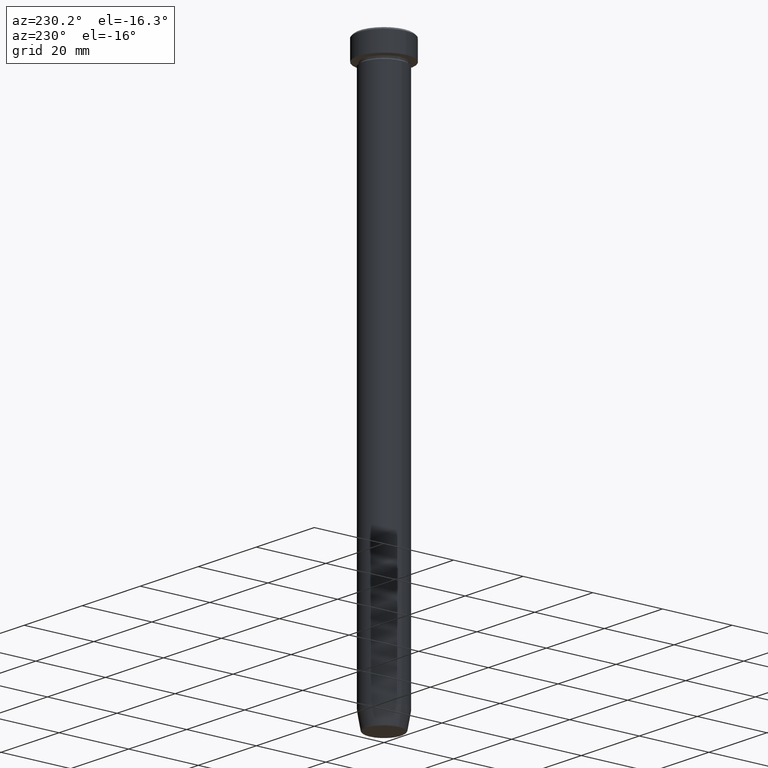
[diagram: clean part render]
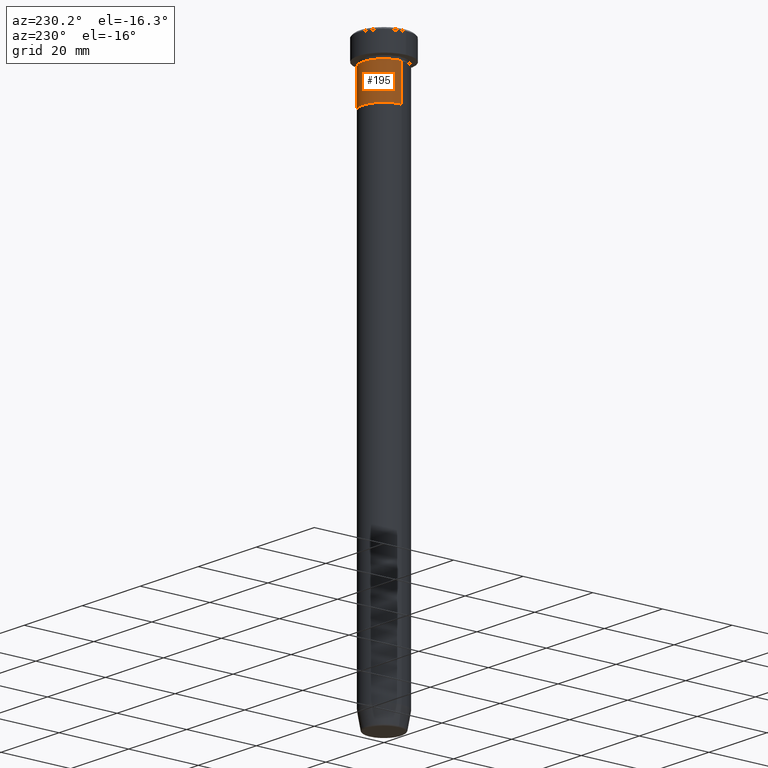
[diagram: same view with one face highlighted and labeled with its STEP entity id]
A machine part, auxiliary view. The second image highlights one B-rep face of the part: STEP entity #195.
In plain terms, the highlighted cylindrical surface (edge-blend (fillet) strip) has radius 6 mm, axis along (-0, -0, 1).
Its self-contained STEP definition (entity closure, byte-faithful):
#22 = VERTEX_POINT ( 'NONE', #446 ) ;
#32 = CARTESIAN_POINT ( 'NONE',  ( 0.000000000000000000, 0.000000000000000000, -17.00000000000000000 ) ) ;
#69 = ORIENTED_EDGE ( 'NONE', *, *, #89, .F. ) ;
#74 = EDGE_LOOP ( 'NONE', ( #443, #580, #251, #69 ) ) ;
#76 = CARTESIAN_POINT ( 'NONE',  ( 0.000000000000000000, 0.000000000000000000, -7.000000000000000000 ) ) ;
#89 = EDGE_CURVE ( 'NONE', #585, #565, #424, .T. ) ;
#127 = AXIS2_PLACEMENT_3D ( 'NONE', #32, #577, #201 ) ;
#132 = DIRECTION ( 'NONE',  ( -0.000000000000000000, -0.000000000000000000, 1.000000000000000000 ) ) ;
#134 = CIRCLE ( 'NONE', #127, 6.000000000000000000 ) ;
#144 = CARTESIAN_POINT ( 'NONE',  ( -6.000000000000000000, 7.347880794884119736E-16, 0.000000000000000000 ) ) ;
#168 = VERTEX_POINT ( 'NONE', #214 ) ;
#191 = CARTESIAN_POINT ( 'NONE',  ( 6.000000000000000000, 0.000000000000000000, 0.000000000000000000 ) ) ;
#195 = ADVANCED_FACE ( 'NONE', ( #445 ), #402, .T. ) ;
#201 = DIRECTION ( 'NONE',  ( 1.000000000000000000, 0.000000000000000000, 0.000000000000000000 ) ) ;
#214 = CARTESIAN_POINT ( 'NONE',  ( -6.000000000000000000, 7.347880794884119736E-16, -7.000000000000000000 ) ) ;
#235 = VECTOR ( 'NONE', #294, 1000.000000000000000 ) ;
#251 = ORIENTED_EDGE ( 'NONE', *, *, #494, .F. ) ;
#277 = CIRCLE ( 'NONE', #480, 6.000000000000000000 ) ;
#294 = DIRECTION ( 'NONE',  ( -0.000000000000000000, -0.000000000000000000, 1.000000000000000000 ) ) ;
#304 = DIRECTION ( 'NONE',  ( 1.000000000000000000, 0.000000000000000000, 0.000000000000000000 ) ) ;
#333 = VECTOR ( 'NONE', #132, 1000.000000000000000 ) ;
#355 = DIRECTION ( 'NONE',  ( -0.000000000000000000, -0.000000000000000000, 1.000000000000000000 ) ) ;
#358 = CARTESIAN_POINT ( 'NONE',  ( 6.000000000000000000, 0.000000000000000000, -7.000000000000000000 ) ) ;
#361 = EDGE_CURVE ( 'NONE', #22, #168, #590, .T. ) ;
#379 = AXIS2_PLACEMENT_3D ( 'NONE', #522, #355, #405 ) ;
#402 = CYLINDRICAL_SURFACE ( 'NONE', #379, 6.000000000000000000 ) ;
#405 = DIRECTION ( 'NONE',  ( 1.000000000000000000, 0.000000000000000000, 0.000000000000000000 ) ) ;
#424 = LINE ( 'NONE', #191, #333 ) ;
#431 = EDGE_CURVE ( 'NONE', #585, #22, #134, .T. ) ;
#443 = ORIENTED_EDGE ( 'NONE', *, *, #431, .T. ) ;
#445 = FACE_OUTER_BOUND ( 'NONE', #74, .T. ) ;
#446 = CARTESIAN_POINT ( 'NONE',  ( -6.000000000000000000, 7.347880794884119736E-16, -17.00000000000000000 ) ) ;
#480 = AXIS2_PLACEMENT_3D ( 'NONE', #76, #495, #304 ) ;
#494 = EDGE_CURVE ( 'NONE', #565, #168, #277, .T. ) ;
#495 = DIRECTION ( 'NONE',  ( -0.000000000000000000, -0.000000000000000000, 1.000000000000000000 ) ) ;
#522 = CARTESIAN_POINT ( 'NONE',  ( 0.000000000000000000, 0.000000000000000000, 0.000000000000000000 ) ) ;
#565 = VERTEX_POINT ( 'NONE', #358 ) ;
#577 = DIRECTION ( 'NONE',  ( -0.000000000000000000, -0.000000000000000000, 1.000000000000000000 ) ) ;
#580 = ORIENTED_EDGE ( 'NONE', *, *, #361, .T. ) ;
#585 = VERTEX_POINT ( 'NONE', #592 ) ;
#590 = LINE ( 'NONE', #144, #235 ) ;
#592 = CARTESIAN_POINT ( 'NONE',  ( 6.000000000000000000, 0.000000000000000000, -17.00000000000000000 ) ) ;